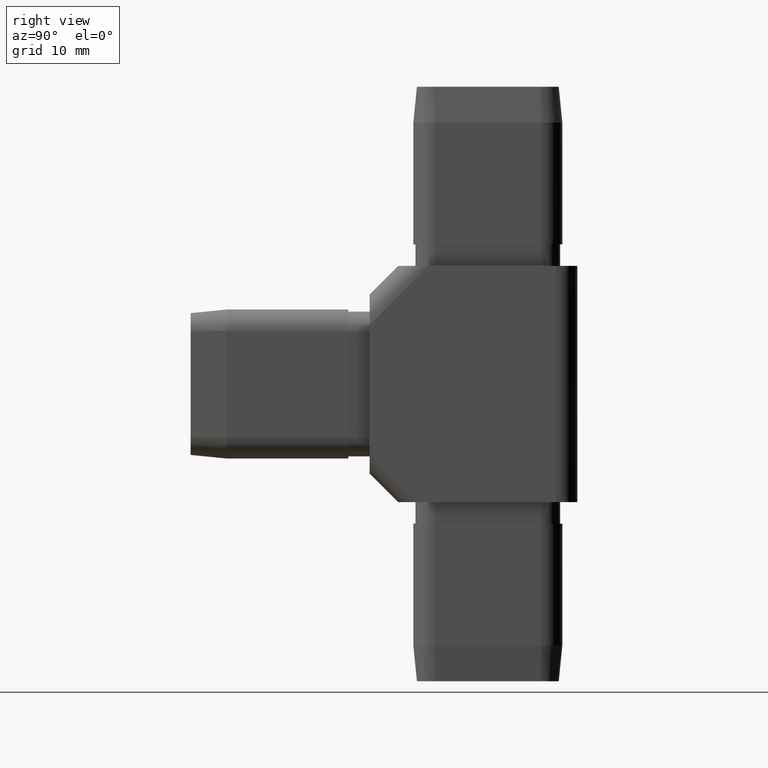
[diagram: clean part render]
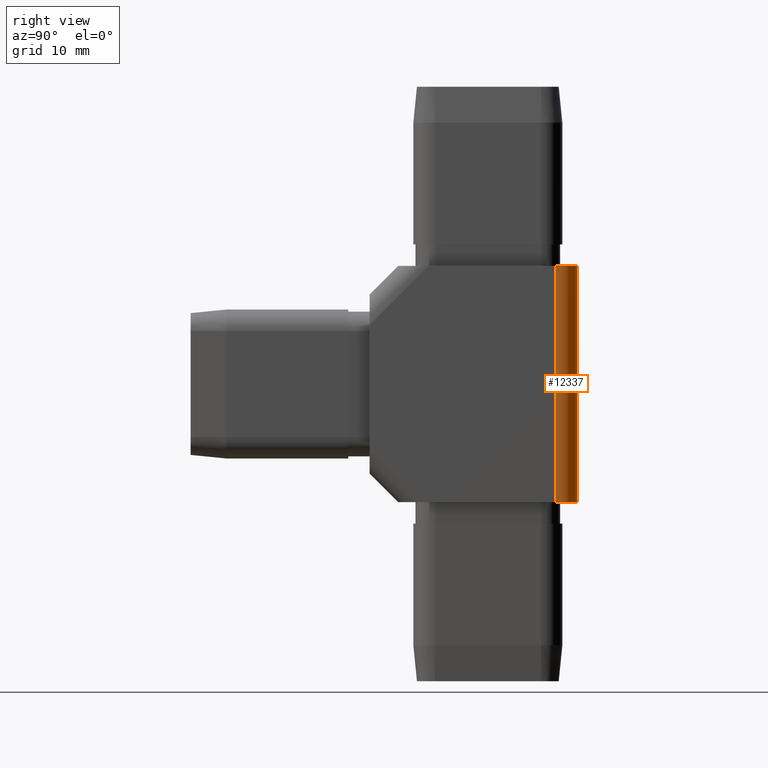
[diagram: same view with one face highlighted and labeled with its STEP entity id]
A machine part, right view. The second image highlights one B-rep face of the part: STEP entity #12337.
In plain terms, the highlighted cylindrical surface (edge-blend (fillet) strip) has radius 3 mm, axis along (0, 0, -1).
Its self-contained STEP definition (entity closure, byte-faithful):
#531 = DIRECTION ( 'NONE',  ( -0.0000000000000000000, -0.0000000000000000000, 1.000000000000000000 ) ) ;
#1168 = AXIS2_PLACEMENT_3D ( 'NONE', #2765, #5963, #2966 ) ;
#1266 = CIRCLE ( 'NONE', #7025, 2.999999999999999100 ) ;
#2515 = CARTESIAN_POINT ( 'NONE',  ( 9.499999999999998200, 11.50000000000000700, 16.50000000000000000 ) ) ;
#2765 = CARTESIAN_POINT ( 'NONE',  ( 9.499999999999998200, 11.50000000000000700, 16.50000000000000000 ) ) ;
#2835 = CARTESIAN_POINT ( 'NONE',  ( 12.49999999999999600, 11.50000000000000700, 16.50000000000000000 ) ) ;
#2966 = DIRECTION ( 'NONE',  ( 1.000000000000000000, 0.0000000000000000000, 0.0000000000000000000 ) ) ;
#3466 = DIRECTION ( 'NONE',  ( 0.0000000000000000000, 0.0000000000000000000, -1.000000000000000000 ) ) ;
#4734 = VERTEX_POINT ( 'NONE', #17264 ) ;
#4814 = CYLINDRICAL_SURFACE ( 'NONE', #6714, 3.000000000000000000 ) ;
#5177 = ORIENTED_EDGE ( 'NONE', *, *, #5862, .F. ) ;
#5862 = EDGE_CURVE ( 'NONE', #6597, #4734, #6121, .T. ) ;
#5963 = DIRECTION ( 'NONE',  ( -0.0000000000000000000, 0.0000000000000000000, 1.000000000000000000 ) ) ;
#6121 = LINE ( 'NONE', #6591, #16260 ) ;
#6591 = CARTESIAN_POINT ( 'NONE',  ( 9.499999999999998200, 14.50000000000000500, 16.50000000000000000 ) ) ;
#6597 = VERTEX_POINT ( 'NONE', #13597 ) ;
#6714 = AXIS2_PLACEMENT_3D ( 'NONE', #2515, #11776, #14613 ) ;
#6953 = EDGE_CURVE ( 'NONE', #4734, #16109, #1266, .T. ) ;
#7025 = AXIS2_PLACEMENT_3D ( 'NONE', #17640, #11477, #14569 ) ;
#7489 = EDGE_CURVE ( 'NONE', #15253, #6597, #15426, .T. ) ;
#10592 = ORIENTED_EDGE ( 'NONE', *, *, #7489, .F. ) ;
#10672 = EDGE_LOOP ( 'NONE', ( #10592, #12924, #11243, #5177 ) ) ;
#11243 = ORIENTED_EDGE ( 'NONE', *, *, #6953, .F. ) ;
#11477 = DIRECTION ( 'NONE',  ( 0.0000000000000000000, -0.0000000000000000000, -1.000000000000000000 ) ) ;
#11752 = EDGE_CURVE ( 'NONE', #16109, #15253, #15303, .T. ) ;
#11776 = DIRECTION ( 'NONE',  ( 0.0000000000000000000, 0.0000000000000000000, -1.000000000000000000 ) ) ;
#12337 = ADVANCED_FACE ( 'NONE', ( #18076 ), #4814, .T. ) ;
#12924 = ORIENTED_EDGE ( 'NONE', *, *, #11752, .F. ) ;
#13597 = CARTESIAN_POINT ( 'NONE',  ( 9.499999999999998200, 14.50000000000000500, 16.50000000000000000 ) ) ;
#14338 = VECTOR ( 'NONE', #531, 1000.000000000000000 ) ;
#14569 = DIRECTION ( 'NONE',  ( 1.000000000000000000, 0.0000000000000000000, 0.0000000000000000000 ) ) ;
#14613 = DIRECTION ( 'NONE',  ( -1.000000000000000000, 0.0000000000000000000, 0.0000000000000000000 ) ) ;
#15253 = VERTEX_POINT ( 'NONE', #2835 ) ;
#15303 = LINE ( 'NONE', #16737, #14338 ) ;
#15426 = CIRCLE ( 'NONE', #1168, 2.999999999999999100 ) ;
#16109 = VERTEX_POINT ( 'NONE', #18684 ) ;
#16260 = VECTOR ( 'NONE', #3466, 1000.000000000000000 ) ;
#16737 = CARTESIAN_POINT ( 'NONE',  ( 12.49999999999999600, 11.50000000000000700, 16.50000000000000000 ) ) ;
#17264 = CARTESIAN_POINT ( 'NONE',  ( 9.499999999999998200, 14.50000000000000500, -16.50000000000000000 ) ) ;
#17640 = CARTESIAN_POINT ( 'NONE',  ( 9.499999999999998200, 11.50000000000000700, -16.50000000000000000 ) ) ;
#18076 = FACE_OUTER_BOUND ( 'NONE', #10672, .T. ) ;
#18684 = CARTESIAN_POINT ( 'NONE',  ( 12.49999999999999600, 11.50000000000000700, -16.50000000000000000 ) ) ;